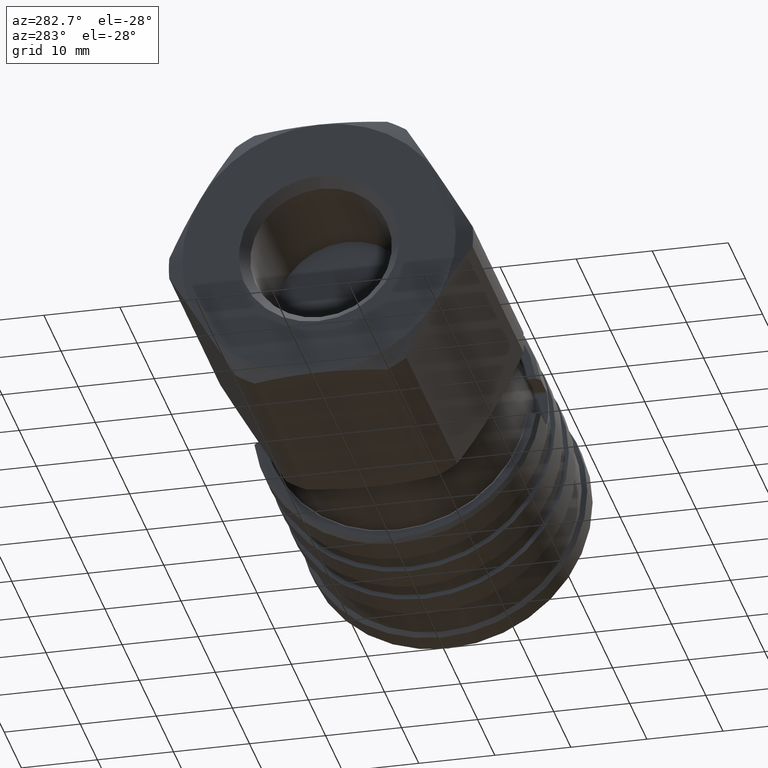
[diagram: clean part render]
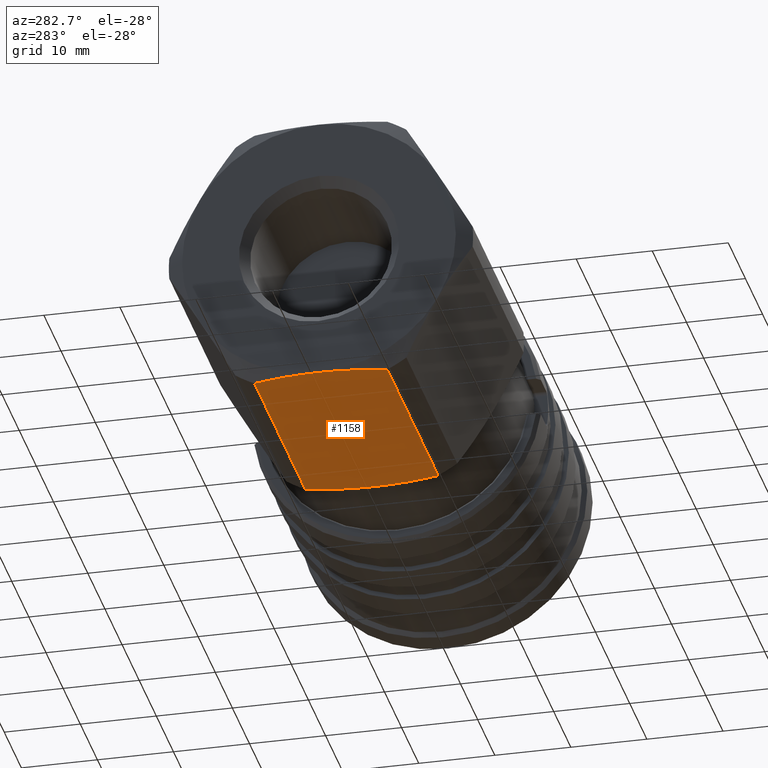
[diagram: same view with one face highlighted and labeled with its STEP entity id]
A machine part, auxiliary view. The second image highlights one B-rep face of the part: STEP entity #1158.
In plain terms, the highlighted planar face has unit normal (0, 0, -1).
Its self-contained STEP definition (entity closure, byte-faithful):
#57 = EDGE_CURVE ( 'NONE', #1815, #1650, #2454, .T. ) ;
#125 = EDGE_CURVE ( 'NONE', #1826, #1650, #498, .T. ) ;
#242 = FACE_OUTER_BOUND ( 'NONE', #3565, .T. ) ;
#498 = LINE ( 'NONE', #1445, #500 ) ;
#500 = VECTOR ( 'NONE', #1477, 1000.000000000000000 ) ;
#986 = EDGE_CURVE ( 'NONE', #1809, #1691, #2230, .T. ) ;
#1048 = AXIS2_PLACEMENT_3D ( 'NONE', #2831, #2832, #2833 ) ;
#1158 = ADVANCED_FACE ( 'NONE', ( #242 ), #2830, .T. ) ;
#1445 = CARTESIAN_POINT ( 'NONE',  ( 9.400000000000002100, -8.717797887081342600, -18.00000000000000000 ) ) ;
#1477 = DIRECTION ( 'NONE',  ( 1.000000000000000000, -0.0000000000000000000, -0.0000000000000000000 ) ) ;
#1650 = VERTEX_POINT ( 'NONE', #2971 ) ;
#1657 = CARTESIAN_POINT ( 'NONE',  ( 9.400000000000003900, -1.467800995497640100, -18.00000000000000700 ) ) ;
#1684 = CARTESIAN_POINT ( 'NONE',  ( 9.400000000000002100, 0.0000000000000000000, -18.00000000000000000 ) ) ;
#1690 = CARTESIAN_POINT ( 'NONE',  ( 8.245299461620765800, -8.717797887081342600, -18.00000000000000400 ) ) ;
#1691 = VERTEX_POINT ( 'NONE', #2994 ) ;
#1756 = VERTEX_POINT ( 'NONE', #3040 ) ;
#1760 = CARTESIAN_POINT ( 'NONE',  ( 8.997426547673816400, -5.107499921101687200, -17.99999999999999600 ) ) ;
#1779 = CARTESIAN_POINT ( 'NONE',  ( 8.589303307150244000, -7.278986985906366100, -18.00000000000000400 ) ) ;
#1809 = VERTEX_POINT ( 'NONE', #3070 ) ;
#1815 = VERTEX_POINT ( 'NONE', #3076 ) ;
#1826 = VERTEX_POINT ( 'NONE', #3085 ) ;
#1847 = CARTESIAN_POINT ( 'NONE',  ( 8.425384198073969000, -8.002213705744004800, -17.99999999999999600 ) ) ;
#1892 = CARTESIAN_POINT ( 'NONE',  ( 8.875126616094947400, -5.832346235789566800, -17.99999999999999600 ) ) ;
#1923 = CARTESIAN_POINT ( 'NONE',  ( 9.295023639538493800, -2.927830317107821900, -18.00000000000000000 ) ) ;
#1992 = ORIENTED_EDGE ( 'NONE', *, *, #986, .F. ) ;
#1997 = ORIENTED_EDGE ( 'NONE', *, *, #57, .T. ) ;
#2025 = ORIENTED_EDGE ( 'NONE', *, *, #4037, .T. ) ;
#2032 = ORIENTED_EDGE ( 'NONE', *, *, #4053, .T. ) ;
#2050 = ORIENTED_EDGE ( 'NONE', *, *, #4029, .T. ) ;
#2056 = ORIENTED_EDGE ( 'NONE', *, *, #125, .F. ) ;
#2230 = LINE ( 'NONE', #2732, #2232 ) ;
#2232 = VECTOR ( 'NONE', #2733, 1000.000000000000000 ) ;
#2454 = B_SPLINE_CURVE_WITH_KNOTS ( 'NONE', 3,
 ( #1684, #1657, #1923, #1760, #1892, #1779, #1847, #1690 ),
 .UNSPECIFIED., .F., .F.,
 ( 4, 2, 2, 4 ),
 ( 0.01818534239562454000, 0.02256822353477117400, 0.02475966410434448900, 0.02695110467391780400 ),
 .UNSPECIFIED. ) ;
#2490 = B_SPLINE_CURVE_WITH_KNOTS ( 'NONE', 3,
 ( #3350, #3351, #3352, #3353, #3354, #3355, #3356, #3357 ),
 .UNSPECIFIED., .F., .F.,
 ( 4, 2, 2, 4 ),
 ( 0.009427442313755892200, 0.01380639235469021500, 0.01599586737515737800, 0.01818534239562454000 ),
 .UNSPECIFIED. ) ;
#2494 = B_SPLINE_CURVE_WITH_KNOTS ( 'NONE', 3,
 ( #3416, #3417, #3418, #3419, #3420, #3421, #3422, #3423 ),
 .UNSPECIFIED., .F., .F.,
 ( 4, 2, 2, 4 ),
 ( 0.02898414868149525400, 0.03117907191082111900, 0.03337399514014698800, 0.03776384159879871800 ),
 .UNSPECIFIED. ) ;
#2499 = B_SPLINE_CURVE_WITH_KNOTS ( 'NONE', 3,
 ( #3315, #3316, #3317, #3318, #3319, #3320, #3321, #3322 ),
 .UNSPECIFIED., .F., .F.,
 ( 4, 2, 2, 4 ),
 ( 0.02019657400376766900, 0.02239346767319956600, 0.02459036134263146300, 0.02898414868149525400 ),
 .UNSPECIFIED. ) ;
#2732 = CARTESIAN_POINT ( 'NONE',  ( 9.400000000000002100, 8.717797887081342600, -18.00000000000000000 ) ) ;
#2733 = DIRECTION ( 'NONE',  ( -1.000000000000000000, 0.0000000000000000000, 0.0000000000000000000 ) ) ;
#2830 = PLANE ( 'NONE',  #1048 ) ;
#2831 = CARTESIAN_POINT ( 'NONE',  ( -22.59999999999999800, -10.39230484541325700, -18.00000000000000000 ) ) ;
#2832 = DIRECTION ( 'NONE',  ( 0.0000000000000000000, 0.0000000000000000000, -1.000000000000000000 ) ) ;
#2833 = DIRECTION ( 'NONE',  ( -1.000000000000000000, 0.0000000000000000000, -0.0000000000000000000 ) ) ;
#2971 = CARTESIAN_POINT ( 'NONE',  ( 8.245299461620765800, -8.717797887081342600, -18.00000000000000400 ) ) ;
#2994 = CARTESIAN_POINT ( 'NONE',  ( -21.44529946162076000, 8.717797887081342600, -18.00000000000000000 ) ) ;
#3040 = CARTESIAN_POINT ( 'NONE',  ( -22.59999999999999800, 0.0000000000000000000, -18.00000000000000000 ) ) ;
#3070 = CARTESIAN_POINT ( 'NONE',  ( 8.245299461620767500, 8.717797887081349700, -18.00000000000000000 ) ) ;
#3076 = CARTESIAN_POINT ( 'NONE',  ( 9.400000000000002100, 0.0000000000000000000, -18.00000000000000000 ) ) ;
#3085 = CARTESIAN_POINT ( 'NONE',  ( -21.44529946162076000, -8.717797887081342600, -18.00000000000000000 ) ) ;
#3315 = CARTESIAN_POINT ( 'NONE',  ( -21.44529946162076000, -8.717797887081342600, -18.00000000000000000 ) ) ;
#3316 = CARTESIAN_POINT ( 'NONE',  ( -21.62538419807396300, -8.002213705744001300, -18.00000000000000400 ) ) ;
#3317 = CARTESIAN_POINT ( 'NONE',  ( -21.78930330715024200, -7.278986985906368700, -18.00000000000000000 ) ) ;
#3318 = CARTESIAN_POINT ( 'NONE',  ( -22.07512661609494100, -5.832346235789566800, -18.00000000000000000 ) ) ;
#3319 = CARTESIAN_POINT ( 'NONE',  ( -22.19742654767381400, -5.107499921101688000, -18.00000000000000000 ) ) ;
#3320 = CARTESIAN_POINT ( 'NONE',  ( -22.49502363953849800, -2.927830317107824200, -18.00000000000000400 ) ) ;
#3321 = CARTESIAN_POINT ( 'NONE',  ( -22.60000000000000100, -1.467800995497642500, -18.00000000000000000 ) ) ;
#3322 = CARTESIAN_POINT ( 'NONE',  ( -22.59999999999999800, 0.0000000000000000000, -18.00000000000000000 ) ) ;
#3350 = CARTESIAN_POINT ( 'NONE',  ( 8.245299461620767500, 8.717797887081349700, -18.00000000000000000 ) ) ;
#3351 = CARTESIAN_POINT ( 'NONE',  ( 8.601599420001823800, 7.302005415991407800, -18.00000000000000400 ) ) ;
#3352 = CARTESIAN_POINT ( 'NONE',  ( 8.892293756473147700, 5.868310588343026000, -17.99999999999999600 ) ) ;
#3353 = CARTESIAN_POINT ( 'NONE',  ( 9.192829360574512200, 3.680791714719132500, -18.00000000000000700 ) ) ;
#3354 = CARTESIAN_POINT ( 'NONE',  ( 9.270527702089852400, 2.942554159925438100, -18.00000000000000000 ) ) ;
#3355 = CARTESIAN_POINT ( 'NONE',  ( 9.374036020240646700, 1.468406675106105100, -18.00000000000000400 ) ) ;
#3356 = CARTESIAN_POINT ( 'NONE',  ( 9.400000000000005700, 0.7332422469674053600, -18.00000000000000000 ) ) ;
#3357 = CARTESIAN_POINT ( 'NONE',  ( 9.400000000000002100, 0.0000000000000000000, -18.00000000000000000 ) ) ;
#3416 = CARTESIAN_POINT ( 'NONE',  ( -22.59999999999999800, 0.0000000000000000000, -18.00000000000000000 ) ) ;
#3417 = CARTESIAN_POINT ( 'NONE',  ( -22.60000000000000500, 0.7332422469674019200, -18.00000000000000400 ) ) ;
#3418 = CARTESIAN_POINT ( 'NONE',  ( -22.57403602024064400, 1.468406675106099600, -18.00000000000000000 ) ) ;
#3419 = CARTESIAN_POINT ( 'NONE',  ( -22.47052770208983900, 2.942554159925430600, -18.00000000000000000 ) ) ;
#3420 = CARTESIAN_POINT ( 'NONE',  ( -22.39282936057450300, 3.680791714719128500, -18.00000000000000000 ) ) ;
#3421 = CARTESIAN_POINT ( 'NONE',  ( -22.09229375647313600, 5.868310588343018000, -18.00000000000000400 ) ) ;
#3422 = CARTESIAN_POINT ( 'NONE',  ( -21.80159942000182100, 7.302005415991400700, -18.00000000000000000 ) ) ;
#3423 = CARTESIAN_POINT ( 'NONE',  ( -21.44529946162076000, 8.717797887081342600, -18.00000000000000000 ) ) ;
#3565 = EDGE_LOOP ( 'NONE', ( #2032, #1992, #2025, #1997, #2056, #2050 ) ) ;
#4029 = EDGE_CURVE ( 'NONE', #1826, #1756, #2499, .T. ) ;
#4037 = EDGE_CURVE ( 'NONE', #1809, #1815, #2490, .T. ) ;
#4053 = EDGE_CURVE ( 'NONE', #1756, #1691, #2494, .T. ) ;